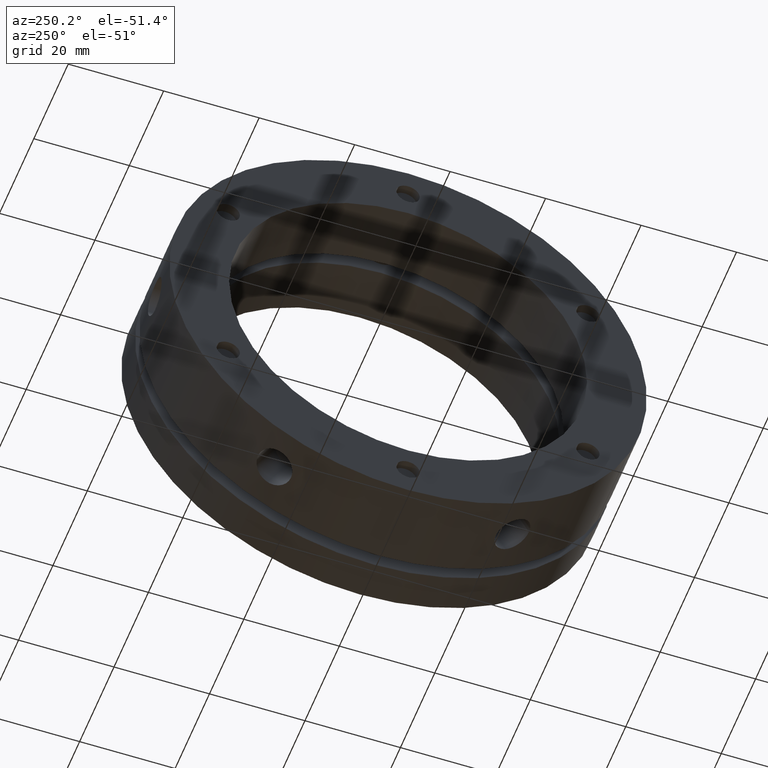
[diagram: clean part render]
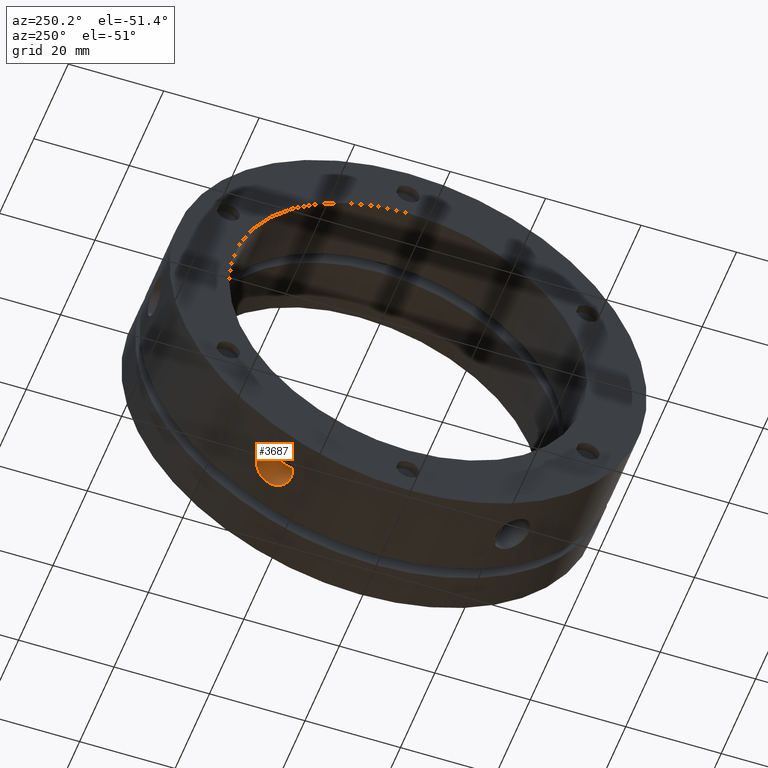
[diagram: same view with one face highlighted and labeled with its STEP entity id]
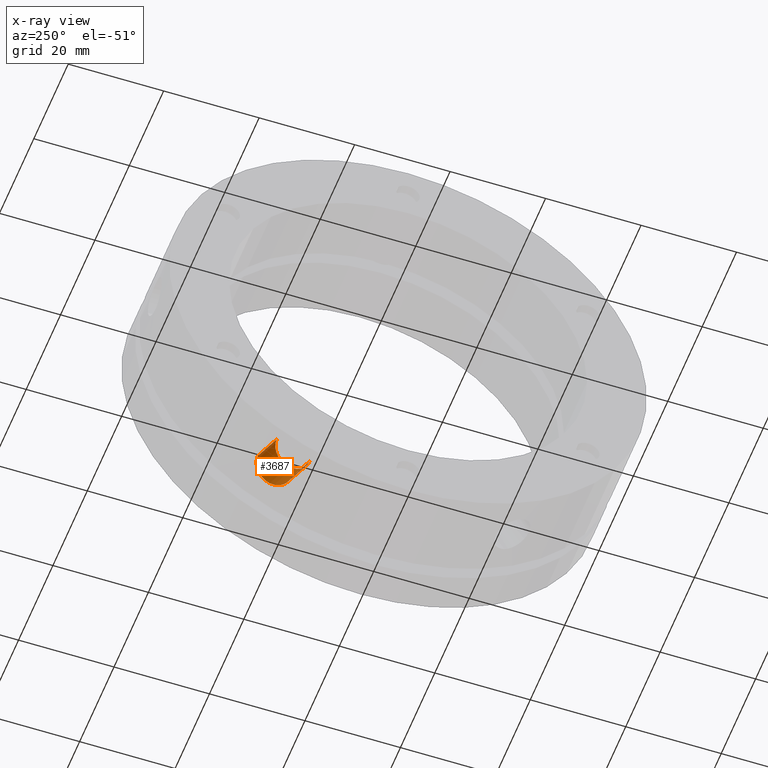
[diagram: x-ray of the same camera — body ghosted, the highlighted face saturated]
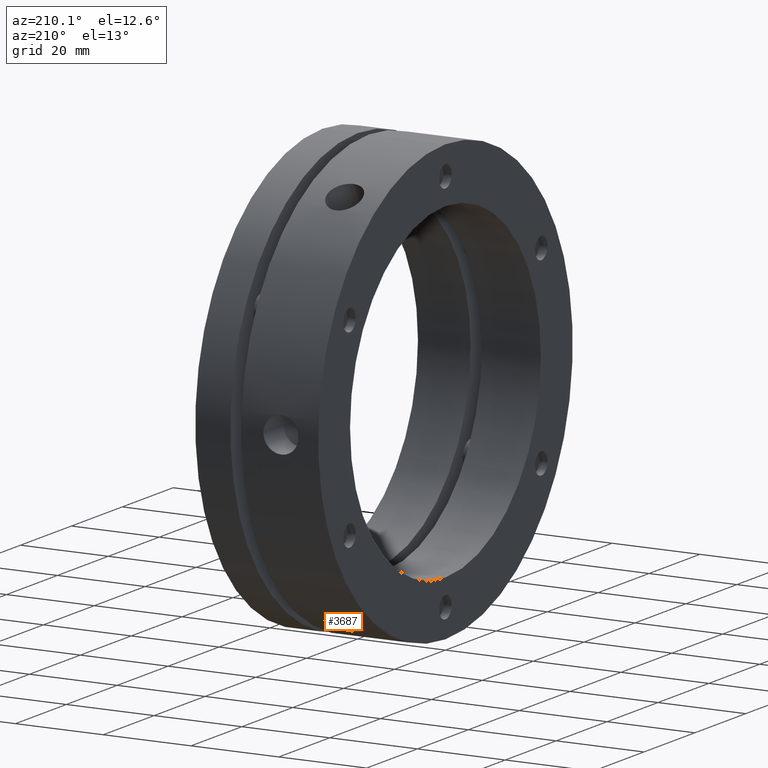
[diagram: same view with one face highlighted and labeled with its STEP entity id]
A machine part, auxiliary view. The second image highlights one B-rep face of the part: STEP entity #3687.
The next image is the same camera in x-ray: the body ghosted, the highlighted face saturated — about 0% of this face is hidden behind the body in this view.
A second angle (auxiliary view) of the same face is appended — the face is thin or edge-on in the first view.
In plain terms, the highlighted cylindrical surface (edge-blend (fillet) strip) has radius 4 mm, axis along (0, 0.5, -0.866).
Its self-contained STEP definition (entity closure, byte-faithful):
#92 = EDGE_LOOP ( 'NONE', ( #2725, #2726, #2727, #2728 ) ) ;
#204 = CIRCLE ( 'NONE', #3770, 4.000000000000000000 ) ;
#443 = LINE ( 'NONE', #1042, #452 ) ;
#447 = LINE ( 'NONE', #1046, #450 ) ;
#450 = VECTOR ( 'NONE', #1048, 1000.000000000000100 ) ;
#452 = VECTOR ( 'NONE', #1049, 1000.000000000000100 ) ;
#737 = CARTESIAN_POINT ( 'NONE',  ( 8.499999999999989300, 21.45576997361645500, -45.16248370981448800 ) ) ;
#738 = CARTESIAN_POINT ( 'NONE',  ( 8.760959181700473100, 21.45576997361645500, -45.16248370981448100 ) ) ;
#743 = CARTESIAN_POINT ( 'NONE',  ( 9.026025537455813800, 21.47945136465293800, -45.15125472152573800 ) ) ;
#744 = CARTESIAN_POINT ( 'NONE',  ( 9.538986356841320500, 21.57209447782240400, -45.10706567373336600 ) ) ;
#745 = CARTESIAN_POINT ( 'NONE',  ( 9.788316635611158400, 21.64054795361193600, -45.07434741657785100 ) ) ;
#746 = CARTESIAN_POINT ( 'NONE',  ( 10.27260009406676900, 21.82166533247921700, -44.98694291547504100 ) ) ;
#747 = CARTESIAN_POINT ( 'NONE',  ( 10.50662161465300500, 21.93466163195493100, -44.93207854260318600 ) ) ;
#748 = CARTESIAN_POINT ( 'NONE',  ( 10.93980527024881300, 22.19513169869871700, -44.80398633988316000 ) ) ;
#749 = CARTESIAN_POINT ( 'NONE',  ( 11.14174234694821300, 22.34351375268635600, -44.73032934712176000 ) ) ;
#750 = CARTESIAN_POINT ( 'NONE',  ( 11.51514601097745900, 22.67747316437220900, -44.56194768182427200 ) ) ;
#751 = CARTESIAN_POINT ( 'NONE',  ( 11.68060590535640100, 22.85771220889123600, -44.46989973588763700 ) ) ;
#752 = CARTESIAN_POINT ( 'NONE',  ( 11.97014552943221200, 23.24243823734228800, -44.27003563052241500 ) ) ;
#753 = CARTESIAN_POINT ( 'NONE',  ( 12.09534166001689700, 23.44942087713567600, -44.16088096470612400 ) ) ;
#754 = CARTESIAN_POINT ( 'NONE',  ( 12.29598598700493300, 23.87645365884330700, -43.93146603209479700 ) ) ;
#755 = CARTESIAN_POINT ( 'NONE',  ( 12.37159425257775600, 24.09531615233662500, -43.81188723723152400 ) ) ;
#756 = CARTESIAN_POINT ( 'NONE',  ( 12.47385484096398000, 24.54331342856622200, -43.56250095800407300 ) ) ;
#757 = CARTESIAN_POINT ( 'NONE',  ( 12.50018596053402200, 24.77355526334425300, -43.43202529718071500 ) ) ;
#758 = CARTESIAN_POINT ( 'NONE',  ( 12.49981203811584900, 25.23134528903936400, -43.16768556114853100 ) ) ;
#759 = CARTESIAN_POINT ( 'NONE',  ( 12.47368770464637500, 25.45535126255048300, -43.03592048128133000 ) ) ;
#760 = CARTESIAN_POINT ( 'NONE',  ( 12.37168484942696600, 25.89410303090624800, -42.77336540179894100 ) ) ;
#761 = CARTESIAN_POINT ( 'NONE',  ( 12.29455720503295000, 26.11110758032786100, -42.64116219811945300 ) ) ;
#762 = CARTESIAN_POINT ( 'NONE',  ( 12.09346208187285800, 26.52295156689121600, -42.38622055406838000 ) ) ;
#763 = CARTESIAN_POINT ( 'NONE',  ( 11.97046050425093200, 26.71739182095888100, -42.26379384917130000 ) ) ;
#764 = CARTESIAN_POINT ( 'NONE',  ( 11.67992742480910300, 27.08403008085513600, -42.02978242650351600 ) ) ;
#765 = CARTESIAN_POINT ( 'NONE',  ( 11.51093565986218300, 27.25679509553053500, -41.91779081430046000 ) ) ;
#766 = CARTESIAN_POINT ( 'NONE',  ( 11.14186118820552800, 27.56551667803579500, -41.71542108026861900 ) ) ;
#767 = CARTESIAN_POINT ( 'NONE',  ( 10.94047344158243700, 27.70356649222471600, -41.62371723152739400 ) ) ;
#768 = CARTESIAN_POINT ( 'NONE',  ( 10.50310162990483900, 27.94683560941365700, -41.46077437747245400 ) ) ;
#769 = CARTESIAN_POINT ( 'NONE',  ( 10.27042342046802800, 28.04979450878891000, -41.39104981975801700 ) ) ;
#770 = CARTESIAN_POINT ( 'NONE',  ( 9.789092206284800900, 28.21494503838917500, -41.27864888350456600 ) ) ;
#771 = CARTESIAN_POINT ( 'NONE',  ( 9.536878196908070000, 28.27837870413582200, -41.23512992181309800 ) ) ;
#772 = CARTESIAN_POINT ( 'NONE',  ( 9.020540365497396400, 28.36309576317916400, -41.17690421258080800 ) ) ;
#773 = CARTESIAN_POINT ( 'NONE',  ( 8.760958818678702200, 28.38397320389196600, -41.16248370981448800 ) ) ;
#774 = CARTESIAN_POINT ( 'NONE',  ( 8.499999999999989300, 28.38397320389196600, -41.16248370981449500 ) ) ;
#1042 = CARTESIAN_POINT ( 'NONE',  ( 8.499999999999989300, 19.53589838486223200, -41.83716857408418800 ) ) ;
#1046 = CARTESIAN_POINT ( 'NONE',  ( 8.499999999999989300, 26.46410161513773900, -37.83716857408418800 ) ) ;
#1048 = DIRECTION ( 'NONE',  ( 0.0000000000000000000, 0.4999999999999998300, -0.8660254037844387100 ) ) ;
#1049 = DIRECTION ( 'NONE',  ( 0.0000000000000000000, 0.4999999999999998300, -0.8660254037844387100 ) ) ;
#1233 = DIRECTION ( 'NONE',  ( 0.0000000000000000000, 0.8660254037844384900, 0.5000000000000004400 ) ) ;
#1235 = DIRECTION ( 'NONE',  ( 0.0000000000000000000, 0.4999999999999998900, -0.8660254037844388200 ) ) ;
#1237 = CARTESIAN_POINT ( 'NONE',  ( 8.499999999999989300, 22.99999999999998600, -39.83716857408418800 ) ) ;
#1730 = FACE_OUTER_BOUND ( 'NONE', #92, .T. ) ;
#1738 = CYLINDRICAL_SURFACE ( 'NONE', #3279, 4.000000000000000000 ) ;
#2725 = ORIENTED_EDGE ( 'NONE', *, *, #3626, .F. ) ;
#2726 = ORIENTED_EDGE ( 'NONE', *, *, #3078, .F. ) ;
#2727 = ORIENTED_EDGE ( 'NONE', *, *, #3625, .T. ) ;
#2728 = ORIENTED_EDGE ( 'NONE', *, *, #3534, .F. ) ;
#2791 = VERTEX_POINT ( 'NONE', #3932 ) ;
#2794 = VERTEX_POINT ( 'NONE', #3935 ) ;
#2808 = VERTEX_POINT ( 'NONE', #3949 ) ;
#2811 = VERTEX_POINT ( 'NONE', #3952 ) ;
#3078 = EDGE_CURVE ( 'NONE', #2811, #2808, #204, .T. ) ;
#3279 = AXIS2_PLACEMENT_3D ( 'NONE', #1237, #1235, #1233 ) ;
#3534 = EDGE_CURVE ( 'NONE', #2794, #2791, #4683, .T. ) ;
#3625 = EDGE_CURVE ( 'NONE', #2811, #2791, #447, .T. ) ;
#3626 = EDGE_CURVE ( 'NONE', #2808, #2794, #443, .T. ) ;
#3687 = ADVANCED_FACE ( 'NONE', ( #1730 ), #1738, .F. ) ;
#3770 = AXIS2_PLACEMENT_3D ( 'NONE', #4160, #4161, #4162 ) ;
#3932 = CARTESIAN_POINT ( 'NONE',  ( 8.499999999999989300, 28.38397320389196600, -41.16248370981449500 ) ) ;
#3935 = CARTESIAN_POINT ( 'NONE',  ( 8.499999999999989300, 21.45576997361645500, -45.16248370981448800 ) ) ;
#3949 = CARTESIAN_POINT ( 'NONE',  ( 8.499999999999989300, 17.53589838948762700, -38.37306695627595600 ) ) ;
#3952 = CARTESIAN_POINT ( 'NONE',  ( 8.499999999999989300, 24.46410161051233700, -34.37306696161691400 ) ) ;
#4160 = CARTESIAN_POINT ( 'NONE',  ( 8.499999999999989300, 20.99999999999998200, -36.37306695894643100 ) ) ;
#4161 = DIRECTION ( 'NONE',  ( 0.0000000000000000000, 0.4999999999999998900, -0.8660254037844388200 ) ) ;
#4162 = DIRECTION ( 'NONE',  ( 0.0000000000000000000, 0.8660254037844384900, 0.5000000000000004400 ) ) ;
#4683 = B_SPLINE_CURVE_WITH_KNOTS ( 'NONE', 3,
 ( #737, #738, #743, #744, #745, #746, #747, #748, #749, #750, #751, #752, #753, #754, #755, #756, #757, #758, #759, #760, #761, #762, #763, #764, #765, #766, #767, #768, #769, #770, #771, #772, #773, #774 ),
 .UNSPECIFIED., .F., .F.,
 ( 4, 2, 2, 2, 2, 2, 2, 2, 2, 2, 2, 2, 2, 2, 2, 2, 4 ),
 ( 0.006256847048841999300, 0.007038605354341144000, 0.007820363659840288600, 0.008602121965339434200, 0.009383880270838578000, 0.01016563857633772300, 0.01094739688183686900, 0.01172915518733601300, 0.01251091349283515800, 0.01329267179833430400, 0.01407443010383344800, 0.01485618840933259300, 0.01563794671483173900, 0.01641970502033088300, 0.01720146332583003000, 0.01798322163132917000, 0.01876497993682831700 ),
 .UNSPECIFIED. ) ;